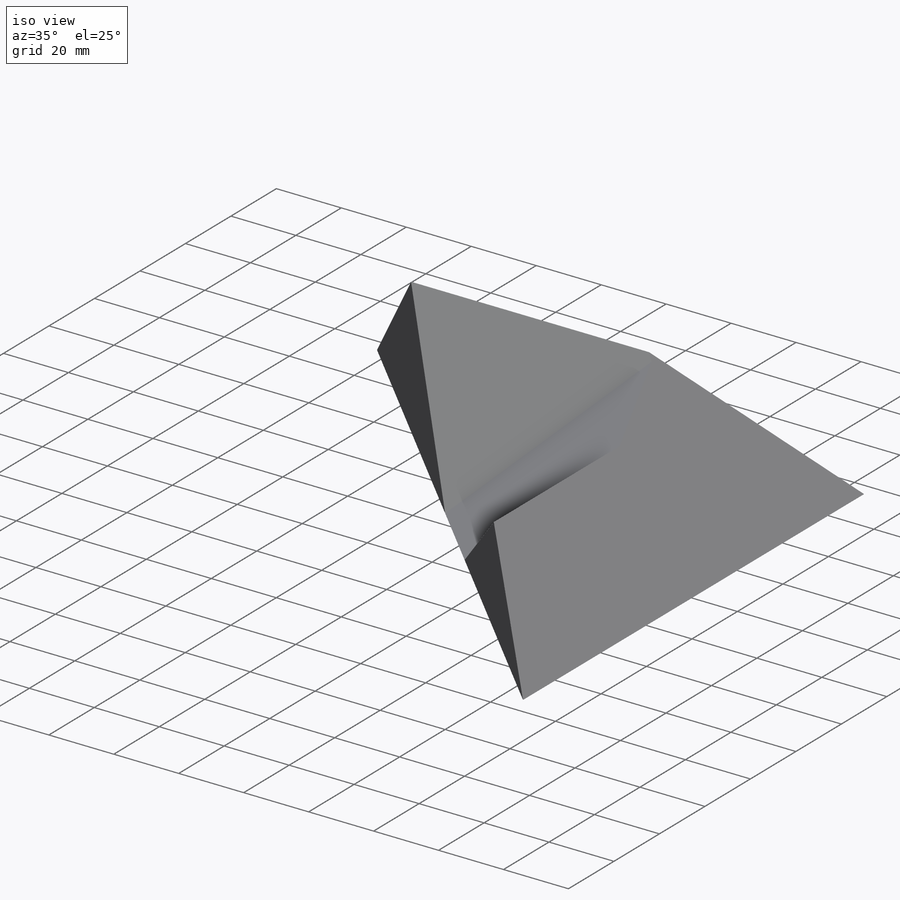
[diagram: iso view]
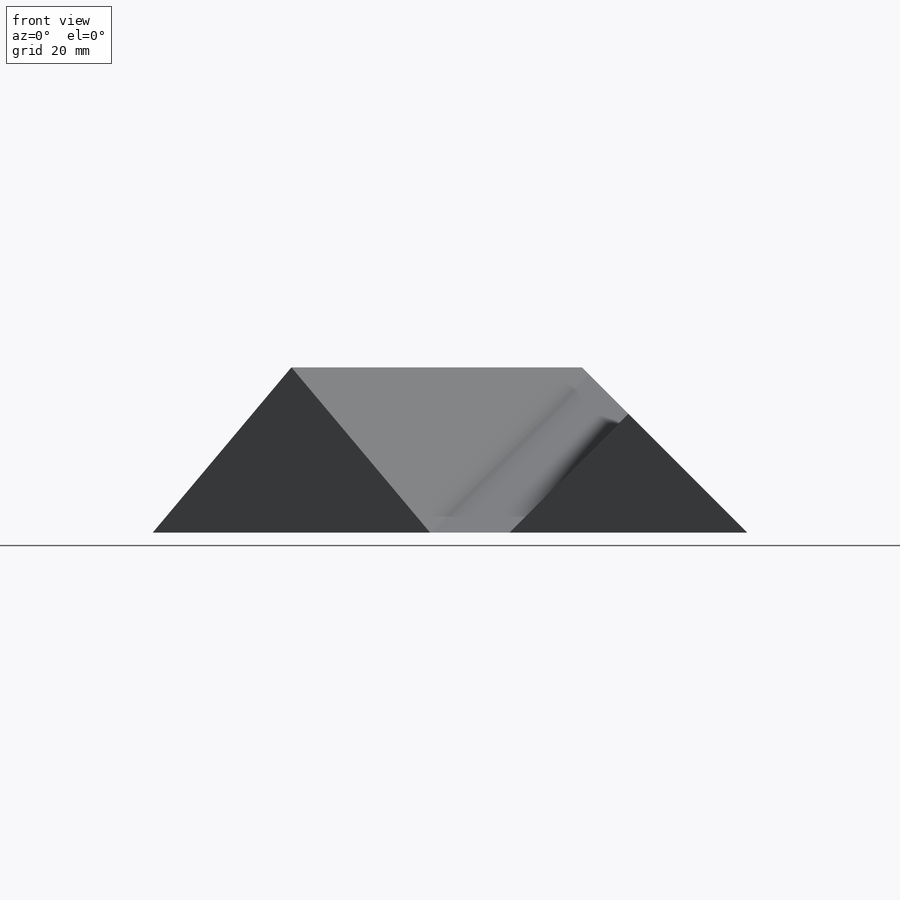
[diagram: front view]
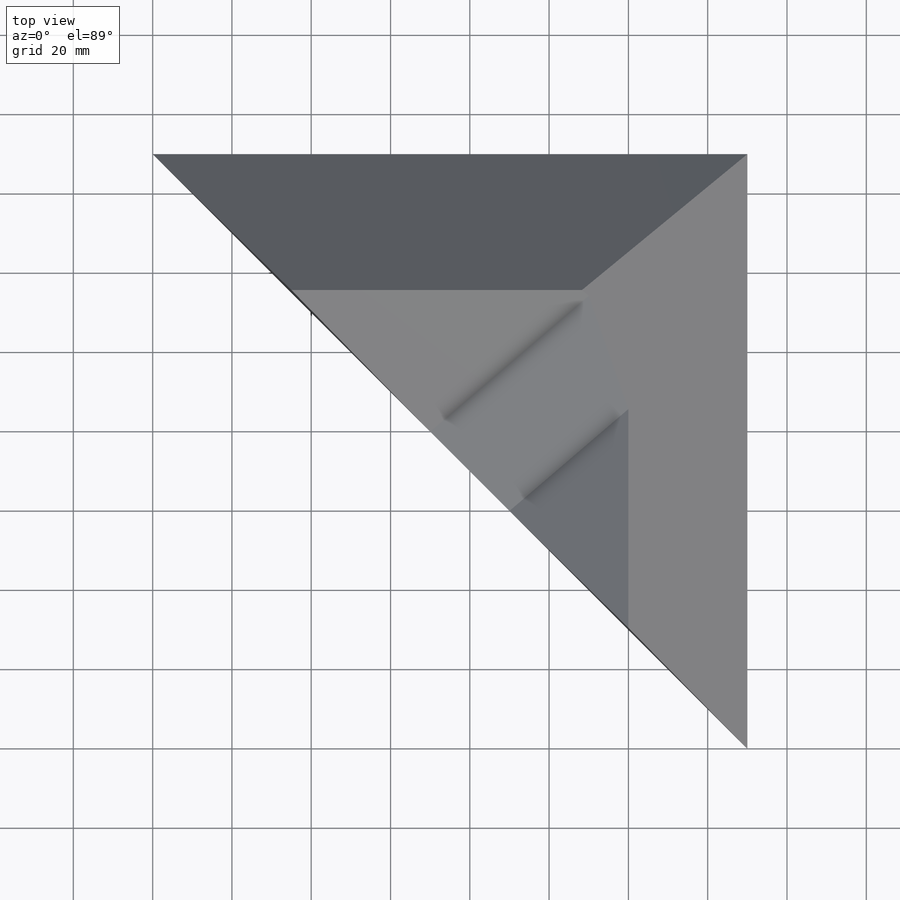
[diagram: top view]
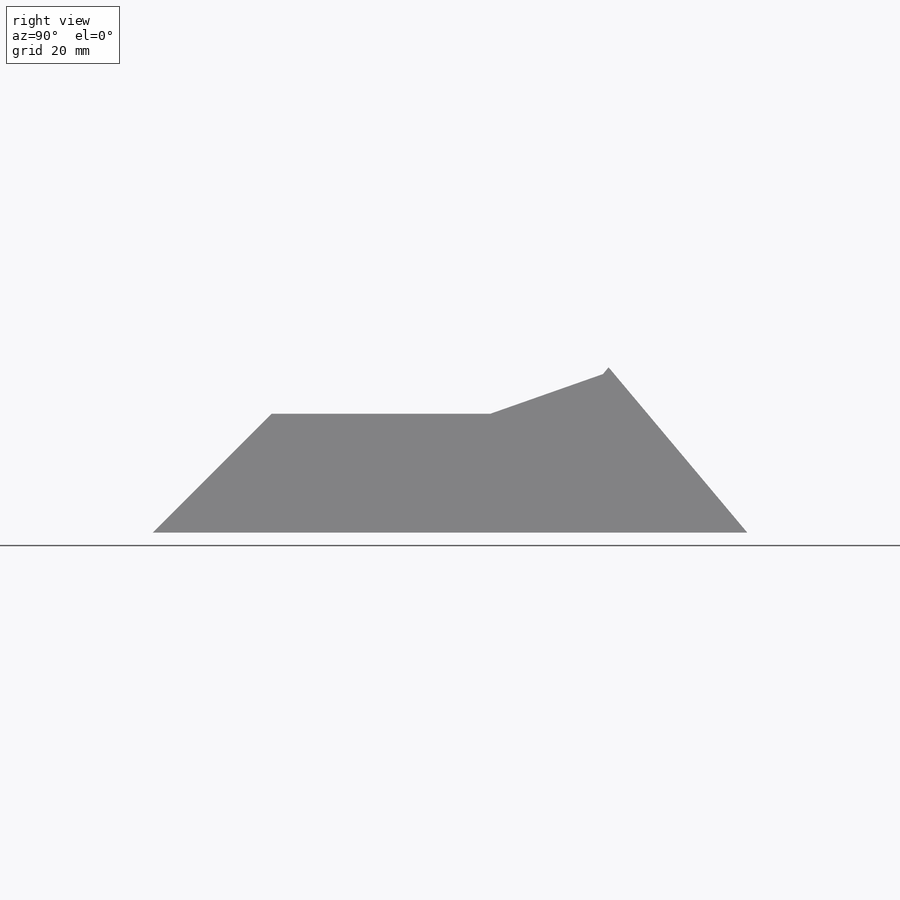
[diagram: right view]
SOLIDWORKS PART (.sldprt)
format: sldprt  version: not decoded by parser v0  size: 177,152 bytes
history: native  units: mm
features: sketch x6, extrude x3, cut_extrude x3, plane x2, material x1 (+14 scaffold rows collapsed)
feature tree (29):
  scaffold x14  (default folders/planes/origin — collapsed)
  material  "Material <not specified>"
  sketch  "Sketch2"  dims[c1.D1=~61.846589mm c2.D1=50.0deg c2.D2=~62.007839mm c3.D2=50.0deg c3.D3=70.0mm]
  extrude  "SurfacesAB"  Depth=150mm
  sketch  "Sketch3"  dims[c1.D1=~40.274108mm c2.D1=45.0deg c2.D2=~14.738778mm c3.D2=45.0deg c3.D3=60.0mm]
  extrude  "SurfacesCD"  Depth=80mm
  sketch  "Sketch6"
  cut_extrude  "Cut-Extrude3"  [1 undecoded]
  plane  "Plane5"
  sketch  "Sketch13"
  extrude  "SurfaceE"  Depth=130mm
  sketch  "Sketch10"
  sketch  "Sketch4"
  cut_extrude  "Cut-Extrude9"  [1 undecoded]
  cut_extrude  "Cut-Extrude10"  Depth=150mm
  plane  "AD Dihedral Angle Plane"
decode coverage: 6 of 12 modeling features carry decoded parameters
note: ~ marks probable driven/reference dimensions
note: 2 parameter values undecoded
note: suppression state not decoded; provenance and decode notes live in map.json
